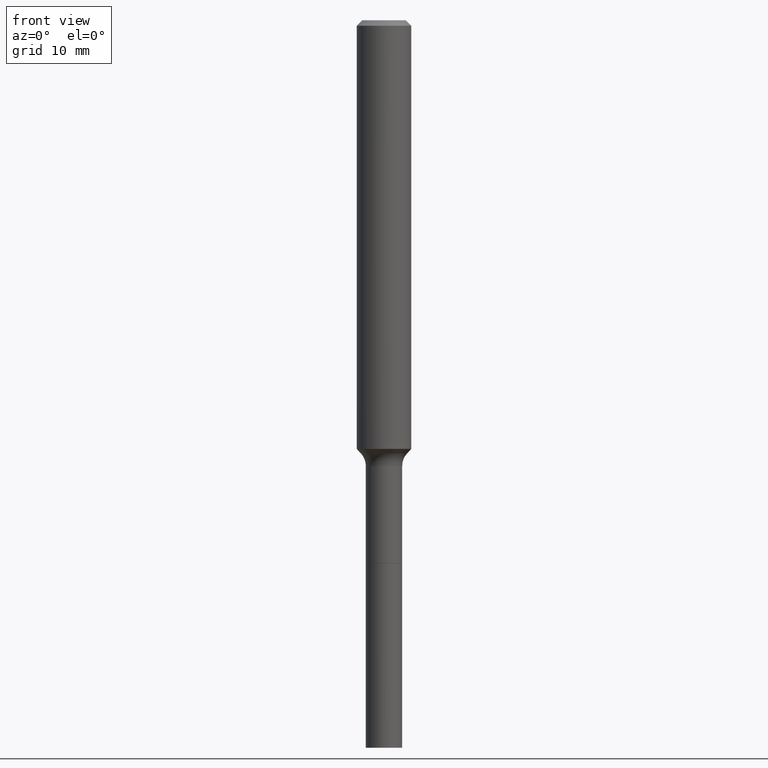
[diagram: clean part render]
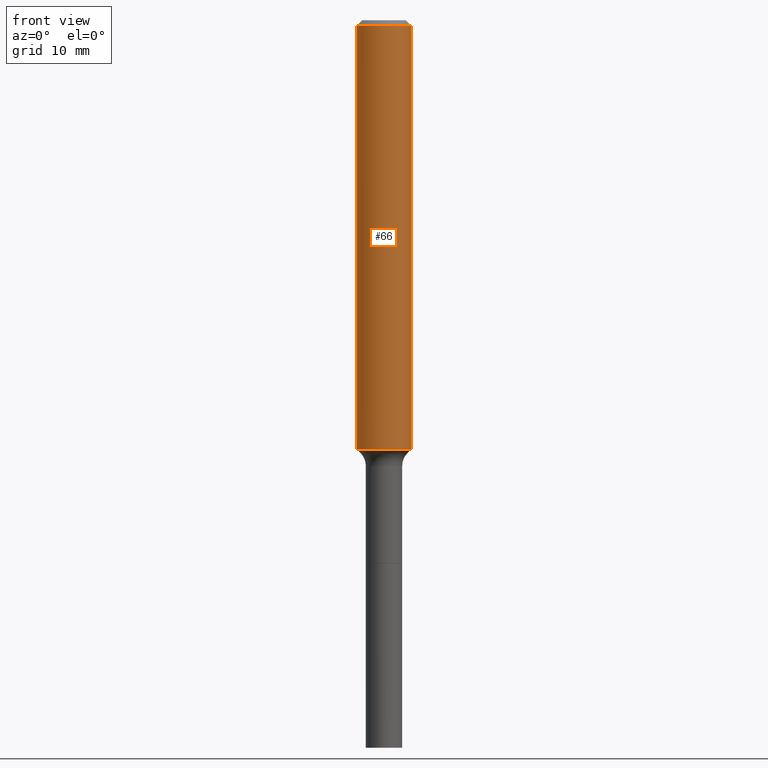
[diagram: same view with one face highlighted and labeled with its STEP entity id]
A machine part, front view. The second image highlights one B-rep face of the part: STEP entity #66.
In plain terms, the highlighted cylindrical surface (edge-blend (fillet) strip) has radius 2.9997 mm, axis along (-0, 0, 1).
Its self-contained STEP definition (entity closure, byte-faithful):
#1 = VECTOR ( 'NONE', #356, 39.37007874015748143 ) ;
#7 = CARTESIAN_POINT ( 'NONE',  ( 4.538519765556305083E-29, -6.479803392843178830E-15, -1.855889453211333029 ) ) ;
#52 = VERTEX_POINT ( 'NONE', #267 ) ;
#62 = CARTESIAN_POINT ( 'NONE',  ( 0.000000000000000000, 0.000000000000000000, 0.000000000000000000 ) ) ;
#66 = ADVANCED_FACE ( 'NONE', ( #421 ), #382, .T. ) ;
#73 = CARTESIAN_POINT ( 'NONE',  ( -0.1181000000000001077, 8.391509709326790846E-16, -5.809262341591049389E-30 ) ) ;
#90 = ORIENTED_EDGE ( 'NONE', *, *, #108, .F. ) ;
#108 = EDGE_CURVE ( 'NONE', #52, #247, #390, .T. ) ;
#128 = ORIENTED_EDGE ( 'NONE', *, *, #512, .T. ) ;
#147 = EDGE_LOOP ( 'NONE', ( #90, #452, #128, #342 ) ) ;
#156 = DIRECTION ( 'NONE',  ( 1.000000000000000000, -6.982962677686266711E-15, 0.000000000000000000 ) ) ;
#166 = AXIS2_PLACEMENT_3D ( 'NONE', #62, #225, #256 ) ;
#173 = DIRECTION ( 'NONE',  ( -2.445468806185136877E-29, 3.491481338843145188E-15, 1.000000000000000000 ) ) ;
#182 = DIRECTION ( 'NONE',  ( 1.000000000000000000, -6.982962677686267499E-15, 0.000000000000000000 ) ) ;
#189 = EDGE_CURVE ( 'NONE', #247, #220, #365, .T. ) ;
#194 = AXIS2_PLACEMENT_3D ( 'NONE', #7, #223, #182 ) ;
#200 = CIRCLE ( 'NONE', #194, 0.1181000000000002187 ) ;
#213 = CARTESIAN_POINT ( 'NONE',  ( 0.1181000000000002187, -7.304491285077929459E-15, -1.855889453211333029 ) ) ;
#220 = VERTEX_POINT ( 'NONE', #503 ) ;
#223 = DIRECTION ( 'NONE',  ( -2.445468806185136597E-29, 3.491481338843145583E-15, 1.000000000000000000 ) ) ;
#225 = DIRECTION ( 'NONE',  ( -2.445468806185136597E-29, 3.491481338843145583E-15, 1.000000000000000000 ) ) ;
#242 = CARTESIAN_POINT ( 'NONE',  ( -0.1180999999999999966, -2.441985120100647369E-15, -0.02362000000000014088 ) ) ;
#247 = VERTEX_POINT ( 'NONE', #242 ) ;
#256 = DIRECTION ( 'NONE',  ( 1.000000000000000000, -6.982962677686266711E-15, 4.876176775795935793E-29 ) ) ;
#266 = LINE ( 'NONE', #331, #480 ) ;
#267 = CARTESIAN_POINT ( 'NONE',  ( -0.1181000000000002187, -5.640652421910499055E-15, -1.855889453211333029 ) ) ;
#331 = CARTESIAN_POINT ( 'NONE',  ( 0.1181000000000001077, -8.246878922347488542E-16, 5.758764772215005345E-30 ) ) ;
#333 = AXIS2_PLACEMENT_3D ( 'NONE', #509, #511, #156 ) ;
#342 = ORIENTED_EDGE ( 'NONE', *, *, #189, .F. ) ;
#356 = DIRECTION ( 'NONE',  ( -2.445468806185136877E-29, 3.491481338843145188E-15, 1.000000000000000000 ) ) ;
#365 = CIRCLE ( 'NONE', #333, 0.1180999999999999966 ) ;
#368 = VERTEX_POINT ( 'NONE', #213 ) ;
#382 = CYLINDRICAL_SURFACE ( 'NONE', #166, 0.1181000000000001077 ) ;
#390 = LINE ( 'NONE', #73, #1 ) ;
#421 = FACE_OUTER_BOUND ( 'NONE', #147, .T. ) ;
#438 = EDGE_CURVE ( 'NONE', #52, #368, #200, .T. ) ;
#452 = ORIENTED_EDGE ( 'NONE', *, *, #438, .T. ) ;
#480 = VECTOR ( 'NONE', #173, 39.37007874015748143 ) ;
#503 = CARTESIAN_POINT ( 'NONE',  ( 0.1180999999999999966, -9.071566814582237199E-16, -0.02362000000000014088 ) ) ;
#509 = CARTESIAN_POINT ( 'NONE',  ( 5.776197320209327532E-31, -8.246878922347559293E-17, -0.02362000000000014088 ) ) ;
#511 = DIRECTION ( 'NONE',  ( -2.445468806185136597E-29, 3.491481338843145583E-15, 1.000000000000000000 ) ) ;
#512 = EDGE_CURVE ( 'NONE', #368, #220, #266, .T. ) ;